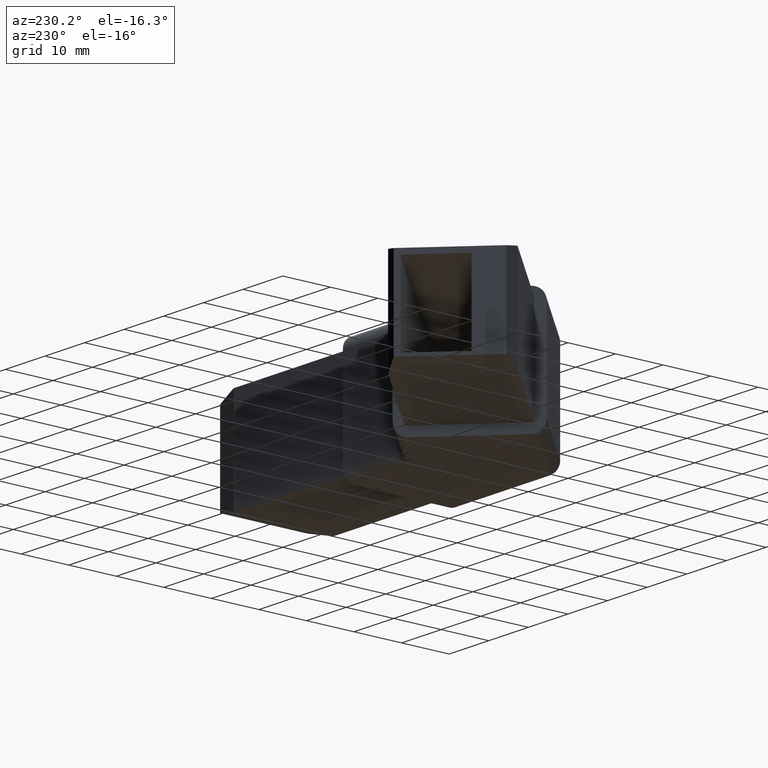
[diagram: clean part render]
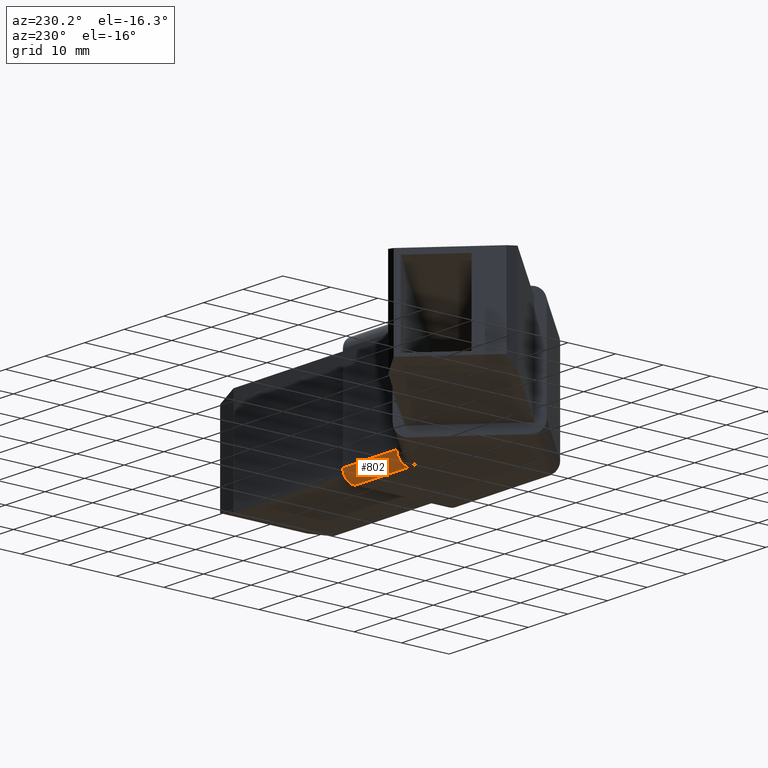
[diagram: same view with one face highlighted and labeled with its STEP entity id]
A machine part, auxiliary view. The second image highlights one B-rep face of the part: STEP entity #802.
In plain terms, the highlighted cylindrical surface (edge-blend (fillet) strip) has radius 2.5 mm, axis along (1, 0, 0).
Its self-contained STEP definition (entity closure, byte-faithful):
#21=CYLINDRICAL_SURFACE('',#881,2.5);
#30=CIRCLE('',#868,2.5);
#38=CIRCLE('',#882,2.5);
#84=FACE_OUTER_BOUND('',#134,.T.);
#134=EDGE_LOOP('',(#643,#644,#645,#646));
#221=LINE('',#1305,#311);
#222=LINE('',#1306,#312);
#311=VECTOR('',#1063,10.);
#312=VECTOR('',#1064,10.);
#372=VERTEX_POINT('',#1263);
#375=VERTEX_POINT('',#1268);
#386=VERTEX_POINT('',#1302);
#387=VERTEX_POINT('',#1303);
#464=EDGE_CURVE('',#372,#375,#30,.T.);
#480=EDGE_CURVE('',#386,#387,#38,.T.);
#481=EDGE_CURVE('',#387,#372,#221,.T.);
#482=EDGE_CURVE('',#375,#386,#222,.T.);
#643=ORIENTED_EDGE('',*,*,#480,.T.);
#644=ORIENTED_EDGE('',*,*,#481,.T.);
#645=ORIENTED_EDGE('',*,*,#464,.T.);
#646=ORIENTED_EDGE('',*,*,#482,.T.);
#802=ADVANCED_FACE('',(#84),#21,.T.);
#868=AXIS2_PLACEMENT_3D('',#1270,#1025,#1026);
#881=AXIS2_PLACEMENT_3D('',#1301,#1059,#1060);
#882=AXIS2_PLACEMENT_3D('',#1304,#1061,#1062);
#1025=DIRECTION('center_axis',(1.,0.,0.));
#1026=DIRECTION('ref_axis',(0.,0.,-1.));
#1059=DIRECTION('center_axis',(1.,0.,0.));
#1060=DIRECTION('ref_axis',(0.,0.707106781186547,-0.707106781186547));
#1061=DIRECTION('center_axis',(-1.,0.,0.));
#1062=DIRECTION('ref_axis',(0.,0.707106781186547,-0.707106781186547));
#1063=DIRECTION('',(-1.,0.,0.));
#1064=DIRECTION('',(1.,0.,0.));
#1263=CARTESIAN_POINT('',(6.21320343559643,10.,0.));
#1268=CARTESIAN_POINT('',(6.21320343559643,12.5,2.5));
#1270=CARTESIAN_POINT('Origin',(6.21320343559643,10.,2.5));
#1301=CARTESIAN_POINT('Origin',(10.5485007397411,10.,2.5));
#1302=CARTESIAN_POINT('',(19.823,12.5,2.5));
#1303=CARTESIAN_POINT('',(19.823,10.,0.));
#1304=CARTESIAN_POINT('Origin',(19.823,10.,2.5));
#1305=CARTESIAN_POINT('',(10.5485007397411,10.,0.));
#1306=CARTESIAN_POINT('',(10.5485007397411,12.5,2.5));